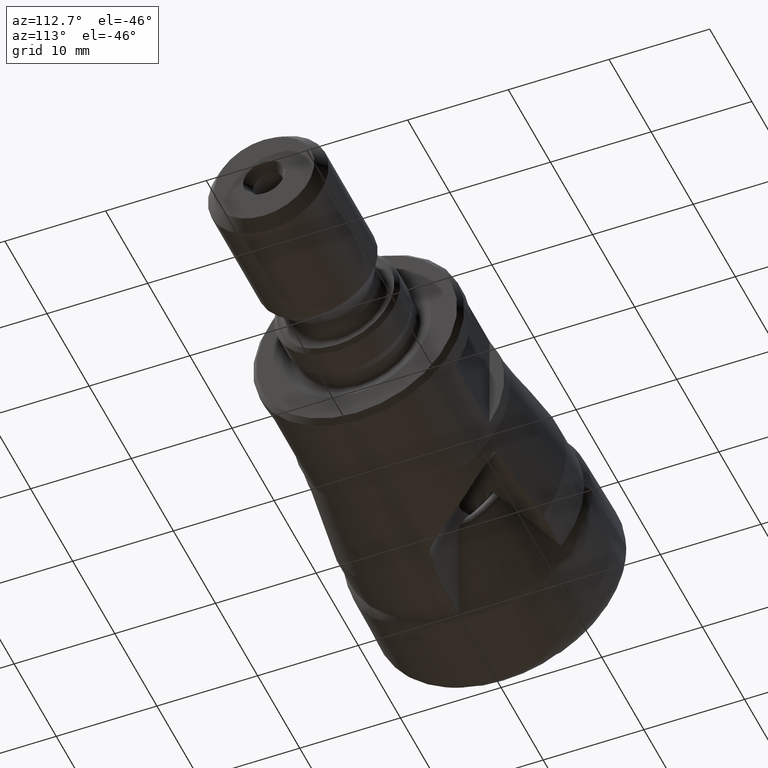
[diagram: clean part render]
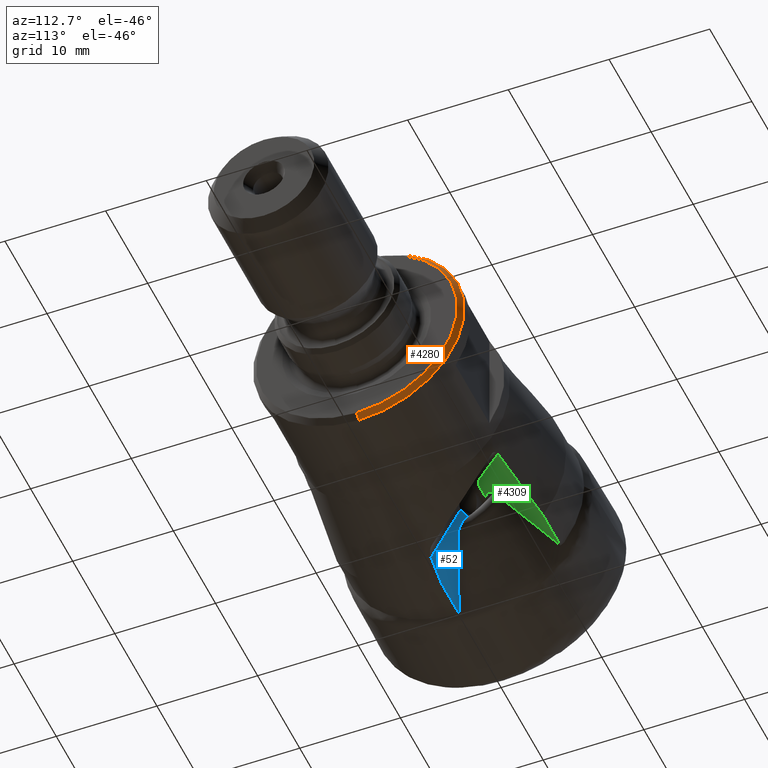
[diagram: same view with three faces highlighted in distinct colors, each labeled with its STEP entity id]
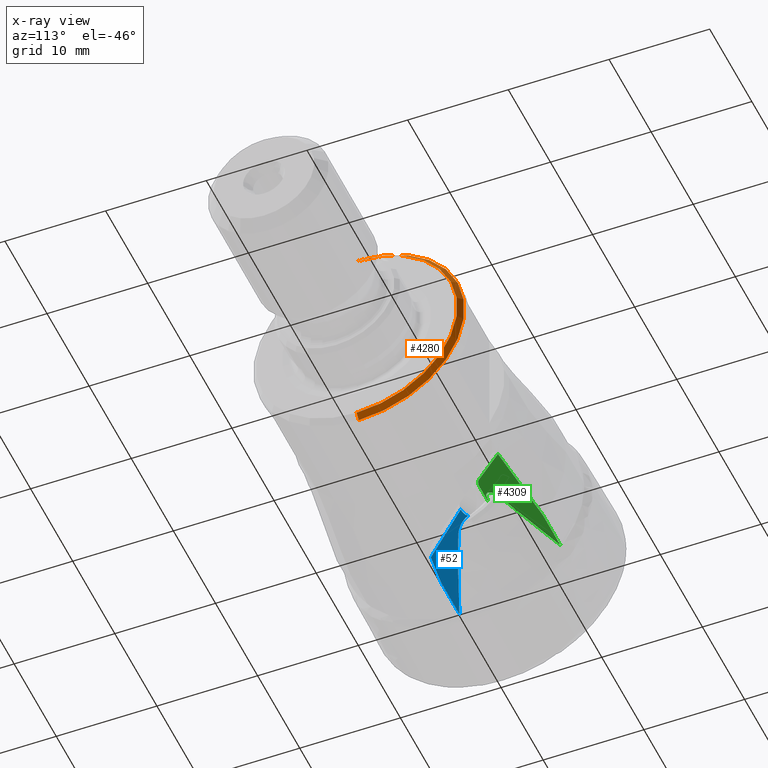
[diagram: x-ray of the same camera — body ghosted, the three highlighted faces saturated]
A machine part, auxiliary view with three faces highlighted in distinct colors.
The next image is the same camera in x-ray (body ghosted, the three faces saturated) — at least one of them is partly hidden behind the body in this view.
Their STEP definitions:

[orange] entity #4280 — the highlighted conical surface has half-angle 45 deg.
#10 = ORIENTED_EDGE ( 'NONE', *, *, #4608, .F. ) ;
#120 = CIRCLE ( 'NONE', #5295, 10.50000000000000000 ) ;
#219 = DIRECTION ( 'NONE',  ( 0.0000000000000000000, 0.0000000000000000000, 1.000000000000000000 ) ) ;
#517 = CARTESIAN_POINT ( 'NONE',  ( 34.29999999784337200, 0.0000000000000000000, 0.0000000000000000000 ) ) ;
#540 = DIRECTION ( 'NONE',  ( -1.000000000000000000, -0.0000000000000000000, -0.0000000000000000000 ) ) ;
#632 = VERTEX_POINT ( 'NONE', #4188 ) ;
#730 = DIRECTION ( 'NONE',  ( -1.000000000000000000, -0.0000000000000000000, -0.0000000000000000000 ) ) ;
#953 = VERTEX_POINT ( 'NONE', #5379 ) ;
#1158 = DIRECTION ( 'NONE',  ( 0.0000000000000000000, 0.0000000000000000000, 1.000000000000000000 ) ) ;
#1234 = AXIS2_PLACEMENT_3D ( 'NONE', #517, #540, #3622 ) ;
#1278 = CIRCLE ( 'NONE', #1234, 10.00000000000000000 ) ;
#1356 = ORIENTED_EDGE ( 'NONE', *, *, #1428, .T. ) ;
#1428 = EDGE_CURVE ( 'NONE', #4275, #632, #3459, .T. ) ;
#1517 = CARTESIAN_POINT ( 'NONE',  ( 34.29999999784337200, 1.255262969126037000E-015, -10.00000000000000000 ) ) ;
#1641 = CARTESIAN_POINT ( 'NONE',  ( 34.29999999784337200, 1.224646799147353300E-015, -10.00000000000000000 ) ) ;
#2349 = DIRECTION ( 'NONE',  ( -0.7071067811865425800, 0.0000000000000000000, 0.7071067811865525700 ) ) ;
#2384 = CARTESIAN_POINT ( 'NONE',  ( 34.29999999784337200, 0.0000000000000000000, 0.0000000000000000000 ) ) ;
#2407 = DIRECTION ( 'NONE',  ( -1.000000000000000000, -0.0000000000000000000, -0.0000000000000000000 ) ) ;
#2606 = LINE ( 'NONE', #5011, #3366 ) ;
#3204 = AXIS2_PLACEMENT_3D ( 'NONE', #2384, #2407, #219 ) ;
#3366 = VECTOR ( 'NONE', #2349, 999.9999999999998900 ) ;
#3410 = CARTESIAN_POINT ( 'NONE',  ( 33.79999999784337900, 0.0000000000000000000, 0.0000000000000000000 ) ) ;
#3459 = LINE ( 'NONE', #1641, #3509 ) ;
#3509 = VECTOR ( 'NONE', #4749, 999.9999999999998900 ) ;
#3622 = DIRECTION ( 'NONE',  ( 0.0000000000000000000, 0.0000000000000000000, 1.000000000000000000 ) ) ;
#3823 = VERTEX_POINT ( 'NONE', #4357 ) ;
#3901 = ORIENTED_EDGE ( 'NONE', *, *, #4313, .F. ) ;
#3922 = CONICAL_SURFACE ( 'NONE', #3204, 10.00000000000000000, 0.7853981633974552700 ) ;
#4120 = EDGE_CURVE ( 'Kante85', #953, #4275, #1278, .T. ) ;
#4188 = CARTESIAN_POINT ( 'NONE',  ( 33.79999999784337900, 1.285879139104720800E-015, -10.50000000000000000 ) ) ;
#4275 = VERTEX_POINT ( 'NONE', #1517 ) ;
#4280 = ADVANCED_FACE ( 'NONE', ( #4679 ), #3922, .T. ) ;
#4313 = EDGE_CURVE ( 'NONE', #3823, #632, #120, .T. ) ;
#4357 = CARTESIAN_POINT ( 'NONE',  ( 33.79999999784337900, 0.0000000000000000000, 10.50000000000000000 ) ) ;
#4608 = EDGE_CURVE ( 'NONE', #953, #3823, #2606, .T. ) ;
#4679 = FACE_OUTER_BOUND ( 'NONE', #4912, .T. ) ;
#4724 = ORIENTED_EDGE ( 'NONE', *, *, #4120, .T. ) ;
#4749 = DIRECTION ( 'NONE',  ( -0.7071067811865425800, 8.659560562354994500E-017, -0.7071067811865525700 ) ) ;
#4912 = EDGE_LOOP ( 'NONE', ( #4724, #1356, #3901, #10 ) ) ;
#5011 = CARTESIAN_POINT ( 'NONE',  ( 34.29999999784337200, 0.0000000000000000000, 10.00000000000000000 ) ) ;
#5295 = AXIS2_PLACEMENT_3D ( 'NONE', #3410, #730, #1158 ) ;
#5379 = CARTESIAN_POINT ( 'NONE',  ( 34.29999999784337200, 0.0000000000000000000, 10.00000000000000000 ) ) ;

[blue] entity #52 — the highlighted planar face has unit normal (0, 0.866, -0.5).
#19 = DIRECTION ( 'NONE',  ( 0.0000000000000000000, 0.5000000000000040000, 0.8660254037844363800 ) ) ;
#52 = ADVANCED_FACE ( 'NONE', ( #1519 ), #2443, .T. ) ;
#58 = B_SPLINE_CURVE_WITH_KNOTS ( 'NONE', 3,
 ( #4208, #5091, #3326, #218, #2028, #4643, #2861, #663, #5536, #1539, #5112, #1122, #1554, #3368, #2470, #4249, #729, #4666, #1094, #2005 ),
 .UNSPECIFIED., .F., .F.,
 ( 4, 2, 2, 2, 2, 2, 2, 2, 2, 4 ),
 ( 0.002391270972943743800, 0.003127600085198032600, 0.003495764641325177200, 0.003863929197452321300, 0.004232093753579466300, 0.004600258309706610500, 0.004784340587770185600, 0.004968422865833760700, 0.005336587421960906600, 0.008281903870978074600 ),
 .UNSPECIFIED. ) ;
#207 = VERTEX_POINT ( 'NONE', #3453 ) ;
#218 = CARTESIAN_POINT ( 'NONE',  ( 14.91667232898005900, 2.467782549994511400, -6.725675241377580000 ) ) ;
#603 = ORIENTED_EDGE ( 'NONE', *, *, #5419, .F. ) ;
#620 = CARTESIAN_POINT ( 'NONE',  ( 8.789538686971994300, -0.5098159277012483900, -11.88302708928632600 ) ) ;
#663 = CARTESIAN_POINT ( 'NONE',  ( 14.84370627371708700, 2.102119606206306600, -7.359022038459400500 ) ) ;
#723 = VECTOR ( 'NONE', #19, 1000.000000000000100 ) ;
#729 = CARTESIAN_POINT ( 'NONE',  ( 14.08032889603645000, 1.629038822682564900, -8.178421991611550400 ) ) ;
#863 = EDGE_CURVE ( 'NONE', #5698, #207, #4240, .T. ) ;
#1094 = CARTESIAN_POINT ( 'NONE',  ( 12.47511828583235200, 0.9503900179209565600, -9.353876201954536300 ) ) ;
#1095 = CARTESIAN_POINT ( 'NONE',  ( 9.192252441842180500, -0.3195992317218413500, -11.55356210740209700 ) ) ;
#1122 = CARTESIAN_POINT ( 'NONE',  ( 14.49690374743821600, 1.813467929235758100, -7.858981408666877200 ) ) ;
#1321 = CARTESIAN_POINT ( 'NONE',  ( 16.00000000000000000, 2.681341076205483900, -6.355781023590649800 ) ) ;
#1346 = B_SPLINE_CURVE_WITH_KNOTS ( 'NONE', 3,
 ( #2862, #3304, #1482, #2354, #3696, #1095, #3328, #4747 ),
 .UNSPECIFIED., .F., .F.,
 ( 4, 2, 2, 4 ),
 ( 0.008281903870978074600, 0.01016567953489655600, 0.01110756736685579800, 0.01204945519881503800 ),
 .UNSPECIFIED. ) ;
#1477 = CARTESIAN_POINT ( 'NONE',  ( 16.00000000000000000, -0.2752231085182037500, -11.47670040737047600 ) ) ;
#1482 = CARTESIAN_POINT ( 'NONE',  ( 10.70421039147381300, 0.2535441356202221000, -10.56084867514455500 ) ) ;
#1519 = FACE_OUTER_BOUND ( 'NONE', #5395, .T. ) ;
#1539 = CARTESIAN_POINT ( 'NONE',  ( 14.69526968193874500, 1.932154787494560600, -7.653409739971928100 ) ) ;
#1549 = DIRECTION ( 'NONE',  ( 1.084202172485504300E-016, 0.8660254037844363800, -0.5000000000000040000 ) ) ;
#1554 = CARTESIAN_POINT ( 'NONE',  ( 14.45070989957568800, 1.792923252642399900, -7.894565832351655200 ) ) ;
#1843 = CARTESIAN_POINT ( 'NONE',  ( 9.000000000000000000, -0.5132226624948097400, -11.88892772703668800 ) ) ;
#1899 = CARTESIAN_POINT ( 'NONE',  ( 15.04413900834787100, 2.751809479667228300, -6.233726168466648500 ) ) ;
#1951 = CARTESIAN_POINT ( 'NONE',  ( 9.000000000000000000, -0.5132226624948097400, -11.88892772703668800 ) ) ;
#2002 = VERTEX_POINT ( 'NONE', #4780 ) ;
#2005 = CARTESIAN_POINT ( 'NONE',  ( 11.69992267080788700, 0.6434900698290441100, -9.885442504889976300 ) ) ;
#2028 = CARTESIAN_POINT ( 'NONE',  ( 14.92242936936945000, 2.406864041589934700, -6.831189193055618800 ) ) ;
#2354 = CARTESIAN_POINT ( 'NONE',  ( 9.949986535016734000, -0.03415141881575096300, -11.05915199253935600 ) ) ;
#2389 = EDGE_CURVE ( 'NONE', #4808, #2002, #3131, .T. ) ;
#2436 = CARTESIAN_POINT ( 'NONE',  ( 8.684308047586071700, -0.5081122957971677700, -11.88007631227106700 ) ) ;
#2443 = PLANE ( 'NONE',  #4057 ) ;
#2470 = CARTESIAN_POINT ( 'NONE',  ( 14.31136294241416400, 1.731725284589114000, -8.000563822339929100 ) ) ;
#2516 = DIRECTION ( 'NONE',  ( -1.000000000000000000, -0.0000000000000000000, -0.0000000000000000000 ) ) ;
#2653 = CARTESIAN_POINT ( 'NONE',  ( 16.00000000000000000, -0.2752231085182037500, -11.47670040737047600 ) ) ;
#2861 = CARTESIAN_POINT ( 'NONE',  ( 14.89813543383722200, 2.221963771190973000, -7.151445855715294000 ) ) ;
#2862 = CARTESIAN_POINT ( 'NONE',  ( 11.69992267080788700, 0.6434900698290441100, -9.885442504889976300 ) ) ;
#2994 = B_SPLINE_CURVE_WITH_KNOTS ( 'NONE', 3,
 ( #1951, #3640, #620, #3701 ),
 .UNSPECIFIED., .F., .F.,
 ( 4, 4 ),
 ( 2.001047682412358100E-007, 0.0003160574639914934600 ),
 .UNSPECIFIED. ) ;
#3071 = CARTESIAN_POINT ( 'NONE',  ( 14.70474431776749000, 2.881001106639896400, -6.009959706637506100 ) ) ;
#3131 = B_SPLINE_CURVE_WITH_KNOTS ( 'NONE', 3,
 ( #1477, #3749, #4203, #5467 ),
 .UNSPECIFIED., .F., .F.,
 ( 4, 4 ),
 ( 2.025278649261428700E-007, 0.003037730330333946200 ),
 .UNSPECIFIED. ) ;
#3162 = ORIENTED_EDGE ( 'NONE', *, *, #3361, .T. ) ;
#3291 = CARTESIAN_POINT ( 'NONE',  ( 16.00000000000000000, -3.364711431703089500, -16.82785115251741800 ) ) ;
#3304 = CARTESIAN_POINT ( 'NONE',  ( 11.20412038279000600, 0.4472019413780899400, -10.22542351628963300 ) ) ;
#3311 = EDGE_CURVE ( 'NONE', #207, #3745, #58, .T. ) ;
#3326 = CARTESIAN_POINT ( 'NONE',  ( 14.87285375125094300, 2.649066764267825800, -6.411681771645997500 ) ) ;
#3328 = CARTESIAN_POINT ( 'NONE',  ( 8.939606687419717100, -0.4147051367780137900, -11.71829036705921100 ) ) ;
#3339 = DIRECTION ( 'NONE',  ( 0.0000000000000000000, 0.5000000000000040000, 0.8660254037844363800 ) ) ;
#3361 = EDGE_CURVE ( 'NONE', #2002, #4154, #5157, .T. ) ;
#3368 = CARTESIAN_POINT ( 'NONE',  ( 14.35764752169008500, 1.752218270830824300, -7.965068928970472600 ) ) ;
#3453 = CARTESIAN_POINT ( 'NONE',  ( 14.70474431776749000, 2.881001106639896400, -6.009959706637506100 ) ) ;
#3640 = CARTESIAN_POINT ( 'NONE',  ( 8.894769337788874400, -0.5115193830963911100, -11.88597756057914100 ) ) ;
#3696 = CARTESIAN_POINT ( 'NONE',  ( 9.697854534202882300, -0.1295863003527605000, -11.22445005617575700 ) ) ;
#3701 = CARTESIAN_POINT ( 'NONE',  ( 8.684308047586071700, -0.5081122957971677700, -11.88007631227106700 ) ) ;
#3721 = ORIENTED_EDGE ( 'NONE', *, *, #863, .F. ) ;
#3745 = VERTEX_POINT ( 'NONE', #5687 ) ;
#3749 = CARTESIAN_POINT ( 'NONE',  ( 15.00012875238117100, -0.3549609679979393600, -11.61481043127616400 ) ) ;
#3954 = CARTESIAN_POINT ( 'NONE',  ( 16.00000000000000000, -3.364711431703089500, -16.82785115251741800 ) ) ;
#4057 = AXIS2_PLACEMENT_3D ( 'NONE', #3291, #1549, #3339 ) ;
#4154 = VERTEX_POINT ( 'NONE', #1843 ) ;
#4203 = CARTESIAN_POINT ( 'NONE',  ( 14.00012236395733600, -0.4342760446684992800, -11.75218817387579600 ) ) ;
#4208 = CARTESIAN_POINT ( 'NONE',  ( 14.70474431776749000, 2.881001106639896400, -6.009959706637506100 ) ) ;
#4240 =( BOUNDED_CURVE ( )  B_SPLINE_CURVE ( 3, ( #4872, #5262, #1899, #3071 ),
 .UNSPECIFIED., .F., .T. ) 
 B_SPLINE_CURVE_WITH_KNOTS ( ( 4, 4 ),
 ( 4.712388980384686100, 5.534680542652346000 ),
 .UNSPECIFIED. ) 
 CURVE ( )  GEOMETRIC_REPRESENTATION_ITEM ( )  RATIONAL_B_SPLINE_CURVE ( ( 1.000000000000000000, 0.9444423345760762900, 0.9444423345760762900, 1.000000000000000000 ) ) 
 REPRESENTATION_ITEM ( '' )  );
#4249 = CARTESIAN_POINT ( 'NONE',  ( 14.17270179854798700, 1.670136603671535700, -8.107238546860317600 ) ) ;
#4281 = EDGE_CURVE ( 'NONE', #3745, #4302, #1346, .T. ) ;
#4302 = VERTEX_POINT ( 'NONE', #2436 ) ;
#4321 = LINE ( 'NONE', #3954, #723 ) ;
#4409 = ORIENTED_EDGE ( 'NONE', *, *, #4994, .T. ) ;
#4410 = VECTOR ( 'NONE', #2516, 1000.000000000000000 ) ;
#4482 = ORIENTED_EDGE ( 'NONE', *, *, #4281, .F. ) ;
#4622 = ORIENTED_EDGE ( 'NONE', *, *, #3311, .F. ) ;
#4643 = CARTESIAN_POINT ( 'NONE',  ( 14.91334433666528300, 2.283885382418134700, -7.044194478987871700 ) ) ;
#4666 = CARTESIAN_POINT ( 'NONE',  ( 13.24159214742607600, 1.263363590549157100, -8.811790072736149800 ) ) ;
#4693 = ORIENTED_EDGE ( 'NONE', *, *, #2389, .T. ) ;
#4747 = CARTESIAN_POINT ( 'NONE',  ( 8.684308047586071700, -0.5081122957971677700, -11.88007631227106700 ) ) ;
#4780 = CARTESIAN_POINT ( 'NONE',  ( 12.99999999999999800, -0.5132226624948105200, -11.88892772703668800 ) ) ;
#4808 = VERTEX_POINT ( 'NONE', #2653 ) ;
#4872 = CARTESIAN_POINT ( 'NONE',  ( 16.00000000000000000, 2.681341076205483900, -6.355781023590649800 ) ) ;
#4994 = EDGE_CURVE ( 'NONE', #4154, #4302, #2994, .T. ) ;
#5091 = CARTESIAN_POINT ( 'NONE',  ( 14.80861018666891300, 2.770496945247008300, -6.201358528617780600 ) ) ;
#5112 = CARTESIAN_POINT ( 'NONE',  ( 14.62472691650561500, 1.881231083884710800, -7.741612181933744500 ) ) ;
#5147 = CARTESIAN_POINT ( 'NONE',  ( 5.963111948670276400E-016, -0.5132226624948097400, -11.88892772703668800 ) ) ;
#5157 = LINE ( 'NONE', #5147, #4410 ) ;
#5262 = CARTESIAN_POINT ( 'NONE',  ( 15.50128909392677900, 2.681341076205485700, -6.355781023590648900 ) ) ;
#5395 = EDGE_LOOP ( 'NONE', ( #4622, #3721, #603, #4693, #3162, #4409, #4482 ) ) ;
#5419 = EDGE_CURVE ( 'NONE', #4808, #5698, #4321, .T. ) ;
#5467 = CARTESIAN_POINT ( 'NONE',  ( 12.99999999999999800, -0.5132226624948105200, -11.88892772703668800 ) ) ;
#5536 = CARTESIAN_POINT ( 'NONE',  ( 14.80409373719767000, 2.042771641233859000, -7.461815729122049500 ) ) ;
#5687 = CARTESIAN_POINT ( 'NONE',  ( 11.69992267080788700, 0.6434900698290441100, -9.885442504889976300 ) ) ;
#5698 = VERTEX_POINT ( 'NONE', #1321 ) ;

[green] entity #4309 — the highlighted planar face has unit normal (0, 0.5, 0.866).
#17 = CIRCLE ( 'NONE', #4489, 1.500000000000000000 ) ;
#31 = CARTESIAN_POINT ( 'NONE',  ( 16.16419142744734200, 4.551958416764250600, -4.106091106384296200 ) ) ;
#76 = ORIENTED_EDGE ( 'NONE', *, *, #1381, .F. ) ;
#89 = DIRECTION ( 'NONE',  ( -1.000000000000000000, 9.389466242107220500E-017, -5.421010862427566500E-017 ) ) ;
#109 = B_SPLINE_CURVE_WITH_KNOTS ( 'NONE', 3,
 ( #3819, #3330, #4708, #2046 ),
 .UNSPECIFIED., .F., .F.,
 ( 4, 4 ),
 ( 9.532836760452446300E-005, 0.0003432413759546910300 ),
 .UNSPECIFIED. ) ;
#171 = EDGE_CURVE ( 'NONE', #1871, #2008, #17, .T. ) ;
#256 = CARTESIAN_POINT ( 'NONE',  ( 16.00000000000000000, 5.855190528383266400, -4.858512516844109000 ) ) ;
#267 = CARTESIAN_POINT ( 'NONE',  ( 16.47986590923320100, 4.624419821928633200, -4.147926718161812700 ) ) ;
#339 = ORIENTED_EDGE ( 'NONE', *, *, #1457, .F. ) ;
#342 = CARTESIAN_POINT ( 'NONE',  ( 9.000000000000000000, 9.605911379667471600, -7.023992209988209700 ) ) ;
#671 = EDGE_CURVE ( 'NONE', #3533, #2960, #109, .T. ) ;
#776 = CARTESIAN_POINT ( 'NONE',  ( 12.99999999999999800, 9.605911379667468000, -7.023992209988207900 ) ) ;
#800 = EDGE_CURVE ( 'NONE', #2782, #1366, #5612, .T. ) ;
#808 = DIRECTION ( 'NONE',  ( 2.312964634635742700E-015, -0.8660254037844364900, 0.5000000000000038900 ) ) ;
#911 = CARTESIAN_POINT ( 'NONE',  ( 8.855388818556395600, 9.602295186457482100, -7.021904399864980400 ) ) ;
#968 = CIRCLE ( 'NONE', #1603, 0.8530003591475708900 ) ;
#987 = CARTESIAN_POINT ( 'NONE',  ( 16.00000000000000000, 4.556152422706613700, -4.108512516844103700 ) ) ;
#1028 = CARTESIAN_POINT ( 'NONE',  ( 0.0000000000000000000, 9.605911379667471600, -7.023992209988209700 ) ) ;
#1163 = ORIENTED_EDGE ( 'NONE', *, *, #3206, .F. ) ;
#1175 = VERTEX_POINT ( 'NONE', #1211 ) ;
#1211 = CARTESIAN_POINT ( 'NONE',  ( 15.25507425084366600, 4.556152422706613700, -4.108512516844103700 ) ) ;
#1290 = DIRECTION ( 'NONE',  ( -0.7071067811865515700, -0.6123724356957894700, 0.3535533905932746200 ) ) ;
#1325 = CARTESIAN_POINT ( 'NONE',  ( 15.95020836532800800, 4.620371790150803900, -4.145589585925195700 ) ) ;
#1350 = VECTOR ( 'NONE', #3214, 1000.000000000000000 ) ;
#1366 = VERTEX_POINT ( 'NONE', #4099 ) ;
#1381 = EDGE_CURVE ( 'NONE', #5547, #3717, #2986, .T. ) ;
#1388 = CARTESIAN_POINT ( 'NONE',  ( 15.34646785717578200, 4.555530360658283800, -4.108153369153048300 ) ) ;
#1457 = EDGE_CURVE ( 'NONE', #3717, #5502, #968, .T. ) ;
#1525 = CARTESIAN_POINT ( 'NONE',  ( 14.02784741471346500, 4.556152422706613700, -4.108512516844103700 ) ) ;
#1598 = PLANE ( 'NONE',  #3711 ) ;
#1603 = AXIS2_PLACEMENT_3D ( 'NONE', #5174, #5210, #2534 ) ;
#1656 = ORIENTED_EDGE ( 'NONE', *, *, #171, .T. ) ;
#1766 = CARTESIAN_POINT ( 'NONE',  ( 16.40198492571499500, 4.601646025331974400, -4.134778260566261700 ) ) ;
#1771 = CARTESIAN_POINT ( 'NONE',  ( 8.951796272770113900, 9.604705984390705000, -7.023296274700688200 ) ) ;
#1808 = CARTESIAN_POINT ( 'NONE',  ( 15.91932510386304100, 4.544469905122078900, -4.101767612171860500 ) ) ;
#1855 = DIRECTION ( 'NONE',  ( 0.8290375725550488400, -0.4842752600216357300, 0.2795964517353704500 ) ) ;
#1871 = VERTEX_POINT ( 'NONE', #2505 ) ;
#1915 = EDGE_LOOP ( 'NONE', ( #4401, #4732, #4505, #339, #76, #5000, #1163, #2248, #2191, #1656, #2829, #5300 ) ) ;
#1998 = VERTEX_POINT ( 'NONE', #3362 ) ;
#2008 = VERTEX_POINT ( 'NONE', #267 ) ;
#2046 = CARTESIAN_POINT ( 'NONE',  ( 14.23732183333204700, 4.672173373125057000, -4.175497243799829200 ) ) ;
#2100 = CARTESIAN_POINT ( 'NONE',  ( 14.99610448973156800, 6.015248257797528800, -4.950921890007314200 ) ) ;
#2191 = ORIENTED_EDGE ( 'NONE', *, *, #3942, .T. ) ;
#2248 = ORIENTED_EDGE ( 'NONE', *, *, #800, .F. ) ;
#2275 = CARTESIAN_POINT ( 'NONE',  ( 15.31600567564988700, 4.555918378784705100, -4.108377391522788400 ) ) ;
#2294 = CARTESIAN_POINT ( 'NONE',  ( 16.00000000000000000, 4.544254677437777400, -4.101643350410391500 ) ) ;
#2312 = CARTESIAN_POINT ( 'NONE',  ( 8.855388818556395600, 9.602295186457482100, -7.021904399864980400 ) ) ;
#2313 = B_SPLINE_CURVE_WITH_KNOTS ( 'NONE', 3,
 ( #3107, #1766, #4888, #31, #3981, #4443 ),
 .UNSPECIFIED., .F., .F.,
 ( 4, 2, 4 ),
 ( 0.0000000000000000000, 0.0002443562416666808500, 0.0004887124833333617000 ),
 .UNSPECIFIED. ) ;
#2505 = CARTESIAN_POINT ( 'NONE',  ( 17.06066017177981600, 4.936631874839571700, -4.328182430954191400 ) ) ;
#2534 = DIRECTION ( 'NONE',  ( 2.033672620853722700E-015, -0.8660254037844363800, 0.5000000000000038900 ) ) ;
#2535 = VECTOR ( 'NONE', #4860, 1000.000000000000200 ) ;
#2721 = CARTESIAN_POINT ( 'NONE',  ( 15.70144823452959700, 4.546699289389005500, -4.103054747778497100 ) ) ;
#2737 = CARTESIAN_POINT ( 'NONE',  ( 15.25507425084366600, 4.556152422706613700, -4.108512516844103700 ) ) ;
#2753 = CARTESIAN_POINT ( 'NONE',  ( 15.95966287339225100, 4.544254677437785400, -4.101643350410396000 ) ) ;
#2782 = VERTEX_POINT ( 'NONE', #2927 ) ;
#2829 = ORIENTED_EDGE ( 'NONE', *, *, #4531, .T. ) ;
#2884 = VECTOR ( 'NONE', #89, 1000.000000000000000 ) ;
#2927 = CARTESIAN_POINT ( 'NONE',  ( 21.28488839681745000, 8.594920829105364000, -6.440296543473004400 ) ) ;
#2960 = VERTEX_POINT ( 'NONE', #3005 ) ;
#2986 = LINE ( 'NONE', #5374, #3744 ) ;
#3005 = CARTESIAN_POINT ( 'NONE',  ( 14.23732183333204700, 4.672173373125057000, -4.175497243799829200 ) ) ;
#3107 = CARTESIAN_POINT ( 'NONE',  ( 16.47986590923320100, 4.624419821928633200, -4.147926718161812700 ) ) ;
#3121 = EDGE_CURVE ( 'NONE', #1175, #3533, #5029, .T. ) ;
#3169 = CARTESIAN_POINT ( 'NONE',  ( 15.52400360491563800, 4.553268963582955700, -4.106847750942862700 ) ) ;
#3206 = EDGE_CURVE ( 'NONE', #1366, #5196, #4903, .T. ) ;
#3214 = DIRECTION ( 'NONE',  ( -1.000000000000000000, -0.0000000000000000000, -0.0000000000000000000 ) ) ;
#3290 = VECTOR ( 'NONE', #1290, 999.9999999999998900 ) ;
#3330 = CARTESIAN_POINT ( 'NONE',  ( 14.09902773870191000, 4.593269175713335700, -4.129941884183979900 ) ) ;
#3346 = B_SPLINE_CURVE_WITH_KNOTS ( 'NONE', 3,
 ( #5322, #1771, #5288, #911 ),
 .UNSPECIFIED., .F., .F.,
 ( 4, 4 ),
 ( 2.000833577471384400E-007, 0.0001448715373584982500 ),
 .UNSPECIFIED. ) ;
#3362 = CARTESIAN_POINT ( 'NONE',  ( 16.00000000000000000, 4.544254677437777400, -4.101643350410391500 ) ) ;
#3445 = CARTESIAN_POINT ( 'NONE',  ( 21.28488839681745000, 8.594920829105364000, -6.440296543473004400 ) ) ;
#3533 = VERTEX_POINT ( 'NONE', #1525 ) ;
#3711 = AXIS2_PLACEMENT_3D ( 'NONE', #256, #5170, #3818 ) ;
#3717 = VERTEX_POINT ( 'NONE', #2100 ) ;
#3744 = VECTOR ( 'NONE', #1855, 1000.000000000000100 ) ;
#3818 = DIRECTION ( 'NONE',  ( 0.0000000000000000000, -0.8660254037844363800, 0.5000000000000040000 ) ) ;
#3819 = CARTESIAN_POINT ( 'NONE',  ( 14.02784741471346500, 4.556152422706613700, -4.108512516844103700 ) ) ;
#3881 = EDGE_CURVE ( 'NONE', #5502, #2960, #4755, .T. ) ;
#3942 = EDGE_CURVE ( 'NONE', #2782, #1871, #5636, .T. ) ;
#3981 = CARTESIAN_POINT ( 'NONE',  ( 16.08295369142722500, 4.544254677437778300, -4.101643350410391500 ) ) ;
#4013 = EDGE_CURVE ( 'NONE', #5196, #5547, #3346, .T. ) ;
#4026 = CARTESIAN_POINT ( 'NONE',  ( 17.06066017177981600, 4.936631874839572600, -4.328182430954191400 ) ) ;
#4099 = CARTESIAN_POINT ( 'NONE',  ( 12.99999999999999800, 9.605911379667468000, -7.023992209988207900 ) ) ;
#4182 = FACE_OUTER_BOUND ( 'NONE', #1915, .T. ) ;
#4309 = ADVANCED_FACE ( 'NONE', ( #4182 ), #1598, .F. ) ;
#4329 = CARTESIAN_POINT ( 'NONE',  ( 15.76166345964789200, 9.269123526936498400, -6.829547652554185600 ) ) ;
#4401 = ORIENTED_EDGE ( 'NONE', *, *, #3121, .T. ) ;
#4443 = CARTESIAN_POINT ( 'NONE',  ( 16.00000000000000000, 4.544254677437777400, -4.101643350410391500 ) ) ;
#4462 = CARTESIAN_POINT ( 'NONE',  ( 14.48934345901696100, 4.664551666193354200, -4.171096849251126700 ) ) ;
#4485 = CARTESIAN_POINT ( 'NONE',  ( 15.87899079249791400, 4.544882618410322400, -4.102005892299925600 ) ) ;
#4489 = AXIS2_PLACEMENT_3D ( 'NONE', #5203, #4752, #808 ) ;
#4505 = ORIENTED_EDGE ( 'NONE', *, *, #3881, .F. ) ;
#4531 = EDGE_CURVE ( 'NONE', #2008, #1998, #2313, .T. ) ;
#4708 = CARTESIAN_POINT ( 'NONE',  ( 14.16905331695950000, 4.631712226567990400, -4.152136989943388200 ) ) ;
#4732 = ORIENTED_EDGE ( 'NONE', *, *, #671, .T. ) ;
#4752 = DIRECTION ( 'NONE',  ( -0.0000000000000000000, -0.5000000000000040000, -0.8660254037844362700 ) ) ;
#4755 = LINE ( 'NONE', #1325, #2535 ) ;
#4860 = DIRECTION ( 'NONE',  ( -0.9993908270190958700, 0.03022385072365099700, -0.01744974835124715400 ) ) ;
#4888 = CARTESIAN_POINT ( 'NONE',  ( 16.32371618149435100, 4.580613070810969100, -4.122634878611705700 ) ) ;
#4903 = LINE ( 'NONE', #1028, #1350 ) ;
#5000 = ORIENTED_EDGE ( 'NONE', *, *, #4013, .F. ) ;
#5029 = LINE ( 'NONE', #987, #2884 ) ;
#5170 = DIRECTION ( 'NONE',  ( 0.0000000000000000000, 0.5000000000000040000, 0.8660254037844363800 ) ) ;
#5174 = CARTESIAN_POINT ( 'NONE',  ( 14.51911274223826000, 5.402821638399848900, -4.597337216439168400 ) ) ;
#5196 = VERTEX_POINT ( 'NONE', #342 ) ;
#5203 = CARTESIAN_POINT ( 'NONE',  ( 16.00000000000000000, 5.855190528383266400, -4.858512516844109000 ) ) ;
#5210 = DIRECTION ( 'NONE',  ( -0.0000000000000000000, -0.5000000000000040000, -0.8660254037844362700 ) ) ;
#5215 = B_SPLINE_CURVE_WITH_KNOTS ( 'NONE', 3,
 ( #2294, #2753, #1808, #4485, #2721, #3169, #1388, #2275, #5406, #2737 ),
 .UNSPECIFIED., .F., .F.,
 ( 4, 3, 3, 4 ),
 ( 9.020979066276896300E-017, 0.0001210113798235173600, 0.0006537010246658065300, 0.0007451006442121277100 ),
 .UNSPECIFIED. ) ;
#5288 = CARTESIAN_POINT ( 'NONE',  ( 8.903592545622215600, 9.603500586654909900, -7.022600337993447200 ) ) ;
#5300 = ORIENTED_EDGE ( 'NONE', *, *, #5556, .T. ) ;
#5322 = CARTESIAN_POINT ( 'NONE',  ( 9.000000000000000000, 9.605911379667471600, -7.023992209988209700 ) ) ;
#5374 = CARTESIAN_POINT ( 'NONE',  ( 15.77176566229695000, 5.562152368699154100, -4.689326856467652700 ) ) ;
#5406 = CARTESIAN_POINT ( 'NONE',  ( 15.28553972716367500, 4.556152422706613700, -4.108512516844103700 ) ) ;
#5502 = VERTEX_POINT ( 'NONE', #4462 ) ;
#5547 = VERTEX_POINT ( 'NONE', #2312 ) ;
#5556 = EDGE_CURVE ( 'NONE', #1998, #1175, #5215, .T. ) ;
#5612 = B_SPLINE_CURVE_WITH_KNOTS ( 'NONE', 3,
 ( #3445, #5617, #4329, #776 ),
 .UNSPECIFIED., .F., .F.,
 ( 4, 4 ),
 ( 0.001732285492673331000, 0.01009901593189700200 ),
 .UNSPECIFIED. ) ;
#5617 = CARTESIAN_POINT ( 'NONE',  ( 18.52329667044007900, 8.932149547656948100, -6.634995634907235200 ) ) ;
#5636 = LINE ( 'NONE', #4026, #3290 ) ;